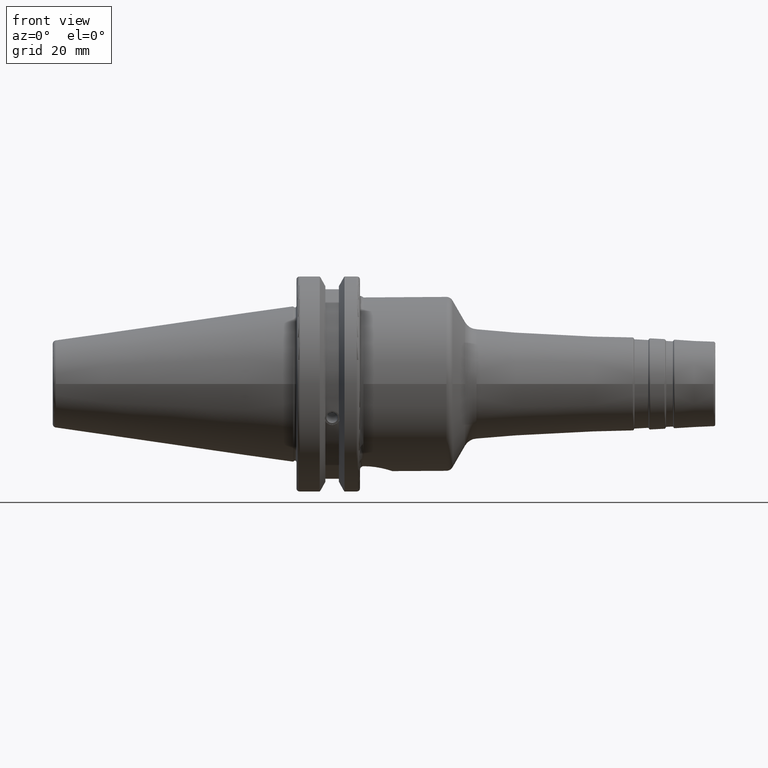
[diagram: clean part render]
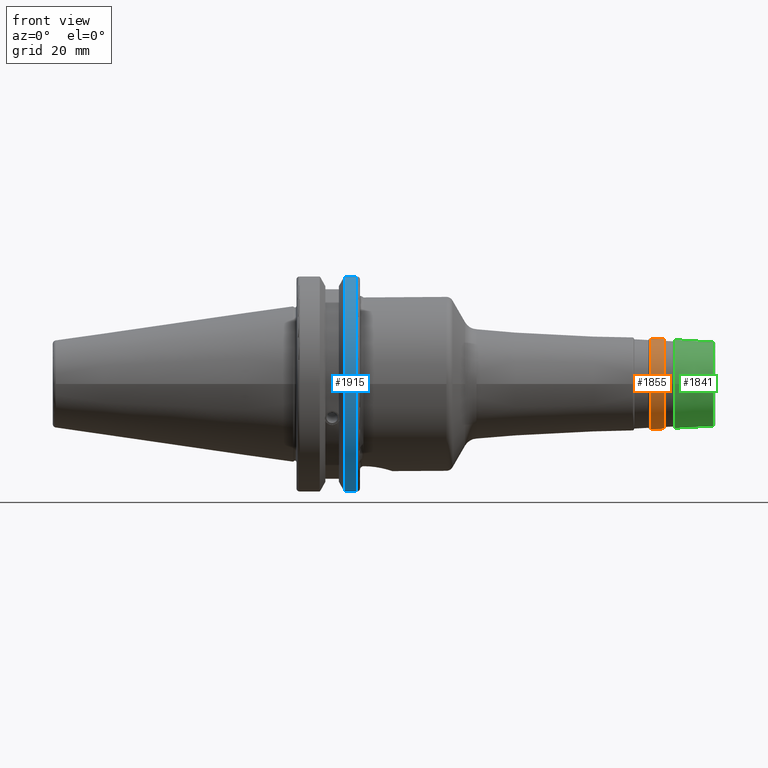
[diagram: same view with three faces highlighted in distinct colors, each labeled with its STEP entity id]
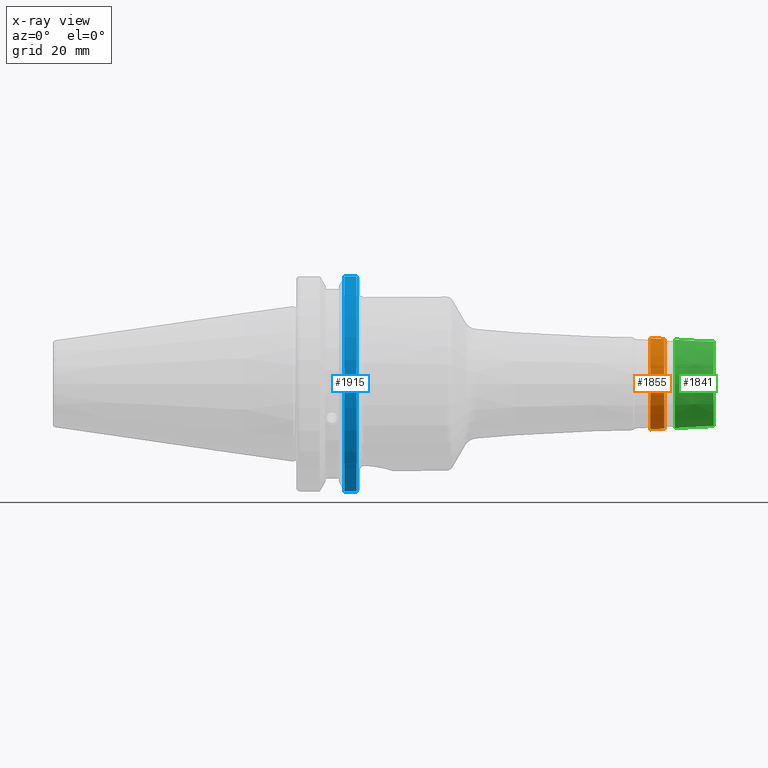
[diagram: x-ray of the same camera — body ghosted, the three highlighted faces saturated]
A machine part, front view with three faces highlighted in distinct colors.
The next image is the same camera in x-ray (body ghosted, the three faces saturated) — at least one of them is partly hidden behind the body in this view.
Their STEP definitions:

[orange] entity #1855 — the highlighted conical surface has half-angle 3 deg.
#210=FACE_OUTER_BOUND('',#320,.T.);
#320=EDGE_LOOP('',(#1366,#1367,#1368,#1369,#1370,#1371));
#430=LINE('',#3064,#528);
#528=VECTOR('',#2404,12.8630337488681);
#668=CIRCLE('',#2044,12.7593884188434);
#669=CIRCLE('',#2045,12.7593884188434);
#670=CIRCLE('',#2047,12.9666790788928);
#671=CIRCLE('',#2048,12.9666790788928);
#790=VERTEX_POINT('',#3057);
#791=VERTEX_POINT('',#3059);
#792=VERTEX_POINT('',#3063);
#793=VERTEX_POINT('',#3065);
#1008=EDGE_CURVE('',#790,#791,#668,.T.);
#1009=EDGE_CURVE('',#791,#790,#669,.T.);
#1010=EDGE_CURVE('',#791,#792,#430,.T.);
#1011=EDGE_CURVE('',#793,#792,#670,.T.);
#1012=EDGE_CURVE('',#792,#793,#671,.T.);
#1366=ORIENTED_EDGE('',*,*,#1009,.F.);
#1367=ORIENTED_EDGE('',*,*,#1010,.T.);
#1368=ORIENTED_EDGE('',*,*,#1011,.F.);
#1369=ORIENTED_EDGE('',*,*,#1012,.F.);
#1370=ORIENTED_EDGE('',*,*,#1010,.F.);
#1371=ORIENTED_EDGE('',*,*,#1008,.F.);
#1817=CONICAL_SURFACE('',#2046,12.8630337488681,0.0523598775598298);
#1855=ADVANCED_FACE('',(#210),#1817,.T.);
#2044=AXIS2_PLACEMENT_3D('',#3060,#2398,#2399);
#2045=AXIS2_PLACEMENT_3D('',#3061,#2400,#2401);
#2046=AXIS2_PLACEMENT_3D('',#3062,#2402,#2403);
#2047=AXIS2_PLACEMENT_3D('',#3066,#2405,#2406);
#2048=AXIS2_PLACEMENT_3D('',#3067,#2407,#2408);
#2398=DIRECTION('center_axis',(1.,0.,0.));
#2399=DIRECTION('ref_axis',(0.,-1.,3.06161699786839E-17));
#2400=DIRECTION('center_axis',(1.,0.,0.));
#2401=DIRECTION('ref_axis',(0.,-1.,3.06161699786839E-17));
#2402=DIRECTION('center_axis',(-1.,0.,0.));
#2403=DIRECTION('ref_axis',(0.,1.,0.));
#2404=DIRECTION('',(-0.998629534754574,-0.0523359562429437,-6.4093061293237E-18));
#2405=DIRECTION('center_axis',(-1.,0.,0.));
#2406=DIRECTION('ref_axis',(0.,-1.,3.06161699786838E-17));
#2407=DIRECTION('center_axis',(-1.,0.,0.));
#2408=DIRECTION('ref_axis',(0.,-1.,3.06161699786838E-17));
#3057=CARTESIAN_POINT('',(105.510005780972,-1.56257441862143E-15,12.7593884188433));
#3059=CARTESIAN_POINT('',(105.510005780972,-12.7593884188434,-1.56257441862143E-15));
#3060=CARTESIAN_POINT('Origin',(105.510005780972,0.,-1.95321802327679E-15));
#3061=CARTESIAN_POINT('Origin',(105.510005780972,0.,-1.95321802327679E-15));
#3062=CARTESIAN_POINT('Origin',(103.532335071726,0.,0.));
#3063=CARTESIAN_POINT('',(101.55466436248,-12.9666790788928,-1.5879602029537E-15));
#3064=CARTESIAN_POINT('',(103.532335071726,-12.8630337488681,-1.57526731078757E-15));
#3065=CARTESIAN_POINT('',(101.55466436248,-1.5879602029537E-15,12.9666790788928));
#3066=CARTESIAN_POINT('Origin',(101.55466436248,0.,-1.98495025369212E-15));
#3067=CARTESIAN_POINT('Origin',(101.55466436248,0.,-1.98495025369212E-15));

[blue] entity #1915 — the highlighted cylindrical surface (partial cylindrical patch) has radius 31.75 mm, axis along (1, 0, 0).
#177=CYLINDRICAL_SURFACE('',#2177,31.75);
#270=FACE_OUTER_BOUND('',#390,.T.);
#390=EDGE_LOOP('',(#1714,#1715,#1716,#1717));
#502=LINE('',#3737,#600);
#503=LINE('',#3739,#601);
#600=VECTOR('',#2736,10.);
#601=VECTOR('',#2739,10.);
#688=CIRCLE('',#2093,31.75);
#713=CIRCLE('',#2151,31.75);
#834=VERTEX_POINT('',#3283);
#835=VERTEX_POINT('',#3287);
#898=VERTEX_POINT('',#3586);
#899=VERTEX_POINT('',#3595);
#1069=EDGE_CURVE('',#835,#834,#688,.T.);
#1157=EDGE_CURVE('',#898,#899,#713,.T.);
#1199=EDGE_CURVE('',#899,#834,#502,.T.);
#1200=EDGE_CURVE('',#835,#898,#503,.T.);
#1714=ORIENTED_EDGE('',*,*,#1157,.F.);
#1715=ORIENTED_EDGE('',*,*,#1200,.F.);
#1716=ORIENTED_EDGE('',*,*,#1069,.T.);
#1717=ORIENTED_EDGE('',*,*,#1199,.F.);
#1915=ADVANCED_FACE('',(#270),#177,.T.);
#2093=AXIS2_PLACEMENT_3D('',#3288,#2517,#2518);
#2151=AXIS2_PLACEMENT_3D('',#3596,#2666,#2667);
#2177=AXIS2_PLACEMENT_3D('',#3738,#2737,#2738);
#2517=DIRECTION('center_axis',(1.,0.,0.));
#2518=DIRECTION('ref_axis',(0.,0.,-1.));
#2666=DIRECTION('center_axis',(1.,0.,0.));
#2667=DIRECTION('ref_axis',(0.,-1.,1.60812264967664E-16));
#2736=DIRECTION('',(-1.,0.,0.));
#2737=DIRECTION('center_axis',(1.,0.,0.));
#2738=DIRECTION('ref_axis',(0.,-1.,1.22464679914735E-16));
#2739=DIRECTION('',(1.,0.,0.));
#3283=CARTESIAN_POINT('',(14.6602667690756,-8.67204822802686,-30.5427254764662));
#3287=CARTESIAN_POINT('',(14.6602667690756,-8.67204822802685,30.5427254764662));
#3288=CARTESIAN_POINT('Origin',(14.6602667690756,0.,0.));
#3586=CARTESIAN_POINT('',(18.05,-8.67204822802685,30.5427254764662));
#3595=CARTESIAN_POINT('',(18.05,-8.67204822802686,-30.5427254764662));
#3596=CARTESIAN_POINT('Origin',(18.05,0.,0.));
#3737=CARTESIAN_POINT('',(16.8551333845378,-8.67204822802686,-30.5427254764662));
#3738=CARTESIAN_POINT('Origin',(16.8551333845378,0.,0.));
#3739=CARTESIAN_POINT('',(16.8551333845378,-8.67204822802685,30.5427254764662));

[green] entity #1841 — the highlighted conical surface has half-angle 3 deg.
#196=FACE_OUTER_BOUND('',#305,.T.);
#305=EDGE_LOOP('',(#1286,#1287,#1288,#1289,#1290,#1291));
#423=LINE('',#2979,#521);
#521=VECTOR('',#2299,12.3062069282811);
#633=CIRCLE('',#1995,12.0248324840198);
#634=CIRCLE('',#1996,12.0248324840198);
#635=CIRCLE('',#1998,12.6003273851922);
#636=CIRCLE('',#1999,12.6003273851922);
#761=VERTEX_POINT('',#2972);
#762=VERTEX_POINT('',#2974);
#763=VERTEX_POINT('',#2978);
#764=VERTEX_POINT('',#2980);
#966=EDGE_CURVE('',#761,#762,#633,.T.);
#967=EDGE_CURVE('',#762,#761,#634,.T.);
#968=EDGE_CURVE('',#762,#763,#423,.T.);
#969=EDGE_CURVE('',#764,#763,#635,.T.);
#970=EDGE_CURVE('',#763,#764,#636,.T.);
#1286=ORIENTED_EDGE('',*,*,#967,.F.);
#1287=ORIENTED_EDGE('',*,*,#968,.T.);
#1288=ORIENTED_EDGE('',*,*,#969,.F.);
#1289=ORIENTED_EDGE('',*,*,#970,.F.);
#1290=ORIENTED_EDGE('',*,*,#968,.F.);
#1291=ORIENTED_EDGE('',*,*,#966,.F.);
#1810=CONICAL_SURFACE('',#1997,12.3062069282811,0.0523598775598296);
#1841=ADVANCED_FACE('',(#196),#1810,.T.);
#1995=AXIS2_PLACEMENT_3D('',#2975,#2293,#2294);
#1996=AXIS2_PLACEMENT_3D('',#2976,#2295,#2296);
#1997=AXIS2_PLACEMENT_3D('',#2977,#2297,#2298);
#1998=AXIS2_PLACEMENT_3D('',#2981,#2300,#2301);
#1999=AXIS2_PLACEMENT_3D('',#2982,#2302,#2303);
#2293=DIRECTION('center_axis',(1.,0.,0.));
#2294=DIRECTION('ref_axis',(0.,-1.,3.06161699786838E-17));
#2295=DIRECTION('center_axis',(1.,0.,0.));
#2296=DIRECTION('ref_axis',(0.,-1.,3.06161699786838E-17));
#2297=DIRECTION('center_axis',(-1.,0.,0.));
#2298=DIRECTION('ref_axis',(0.,1.,0.));
#2299=DIRECTION('',(-0.998629534754574,-0.0523359562429435,-6.40930612932367E-18));
#2300=DIRECTION('center_axis',(-1.,0.,0.));
#2301=DIRECTION('ref_axis',(0.,-1.,3.06161699786838E-17));
#2302=DIRECTION('center_axis',(-1.,0.,0.));
#2303=DIRECTION('ref_axis',(0.,-1.,3.06161699786838E-17));
#2972=CARTESIAN_POINT('',(119.526167978121,-1.4726172611838E-15,12.0248324840198));
#2974=CARTESIAN_POINT('',(119.526167978121,-12.0248324840198,-1.4726172611838E-15));
#2975=CARTESIAN_POINT('Origin',(119.526167978121,0.,-1.84077157647975E-15));
#2976=CARTESIAN_POINT('Origin',(119.526167978121,0.,-1.84077157647975E-15));
#2977=CARTESIAN_POINT('Origin',(114.157223746739,0.,0.));
#2978=CARTESIAN_POINT('',(108.545071105762,-12.6003273851922,-1.54309506004843E-15));
#2979=CARTESIAN_POINT('',(114.157223746739,-12.3062069282811,-1.50707569243645E-15));
#2980=CARTESIAN_POINT('',(108.545071105762,-1.54309506004843E-15,12.6003273851922));
#2981=CARTESIAN_POINT('Origin',(108.545071105762,0.,-1.92886882506054E-15));
#2982=CARTESIAN_POINT('Origin',(108.545071105762,0.,-1.92886882506054E-15));